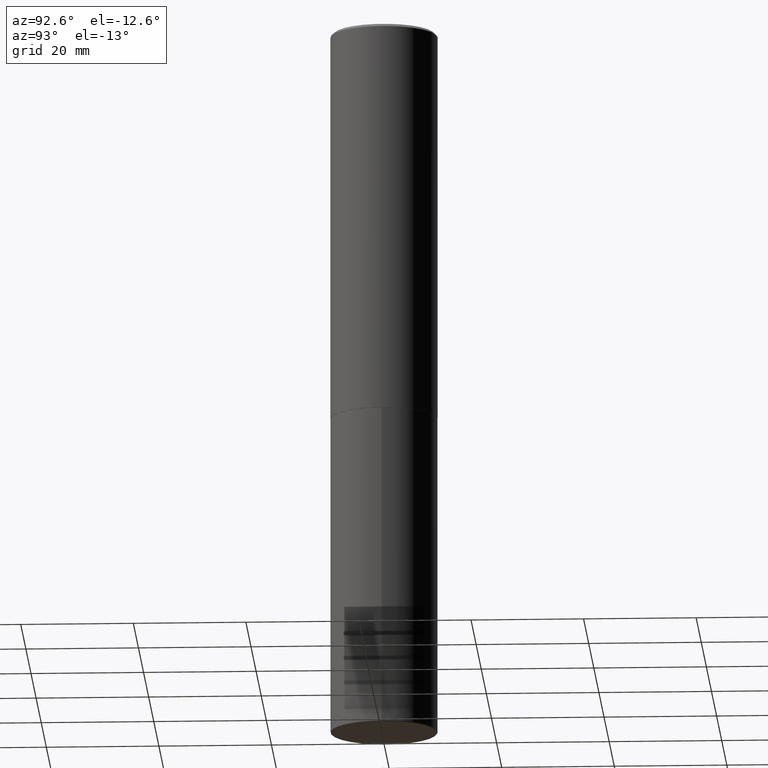
[diagram: clean part render]
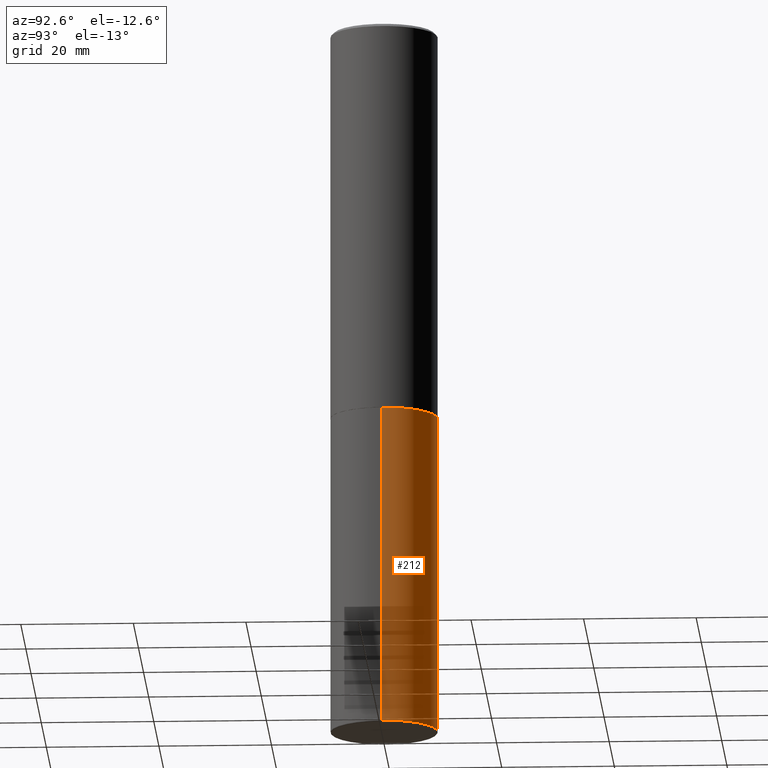
[diagram: same view with one face highlighted and labeled with its STEP entity id]
A machine part, auxiliary view. The second image highlights one B-rep face of the part: STEP entity #212.
In plain terms, the highlighted cylindrical surface (partial cylindrical patch) has radius 9.525 mm, axis along (-0, 0, 1).
Its self-contained STEP definition (entity closure, byte-faithful):
#14 = AXIS2_PLACEMENT_3D ( 'NONE', #387, #48, #221 ) ;
#18 = CYLINDRICAL_SURFACE ( 'NONE', #189, 0.3750000000000000555 ) ;
#34 = CARTESIAN_POINT ( 'NONE',  ( 1.220288934286383144E-28, -1.742249188082729666E-14, -4.990000000000000213 ) ) ;
#39 = ORIENTED_EDGE ( 'NONE', *, *, #170, .F. ) ;
#47 = CARTESIAN_POINT ( 'NONE',  ( -0.3750000000000000555, 2.664535259100376091E-15, -1.844600658845589598E-29 ) ) ;
#48 = DIRECTION ( 'NONE',  ( -2.445468806185136597E-29, 3.491481338843145583E-15, 1.000000000000000000 ) ) ;
#95 = DIRECTION ( 'NONE',  ( -2.445468806185136597E-29, 3.491481338843145583E-15, 1.000000000000000000 ) ) ;
#102 = EDGE_LOOP ( 'NONE', ( #131, #167, #39, #335 ) ) ;
#107 = LINE ( 'NONE', #47, #353 ) ;
#126 = DIRECTION ( 'NONE',  ( 1.000000000000000000, -6.982962677686265922E-15, 4.876176775795935793E-29 ) ) ;
#131 = ORIENTED_EDGE ( 'NONE', *, *, #258, .T. ) ;
#141 = VERTEX_POINT ( 'NONE', #187 ) ;
#160 = DIRECTION ( 'NONE',  ( 1.000000000000000000, -6.982962677686261189E-15, 0.000000000000000000 ) ) ;
#167 = ORIENTED_EDGE ( 'NONE', *, *, #372, .T. ) ;
#170 = EDGE_CURVE ( 'NONE', #201, #171, #396, .T. ) ;
#171 = VERTEX_POINT ( 'NONE', #248 ) ;
#173 = AXIS2_PLACEMENT_3D ( 'NONE', #34, #294, #160 ) ;
#179 = CARTESIAN_POINT ( 'NONE',  ( -0.3750000000000003886, -1.475795662172691781E-14, -4.990000000000000213 ) ) ;
#187 = CARTESIAN_POINT ( 'NONE',  ( 0.3750000000000003886, -2.004110288495964667E-14, -4.990000000000000213 ) ) ;
#189 = AXIS2_PLACEMENT_3D ( 'NONE', #260, #95, #126 ) ;
#201 = VERTEX_POINT ( 'NONE', #250 ) ;
#202 = CARTESIAN_POINT ( 'NONE',  ( 0.3750000000000000555, -2.618611004132350016E-15, 1.828566290923476203E-29 ) ) ;
#212 = ADVANCED_FACE ( 'NONE', ( #273 ), #18, .T. ) ;
#221 = DIRECTION ( 'NONE',  ( 1.000000000000000000, -6.982962677686266711E-15, 0.000000000000000000 ) ) ;
#234 = VECTOR ( 'NONE', #338, 39.37007874015748143 ) ;
#244 = CIRCLE ( 'NONE', #173, 0.3750000000000000555 ) ;
#248 = CARTESIAN_POINT ( 'NONE',  ( -0.3750000000000000555, -1.084749752222259835E-14, -2.750000000000000000 ) ) ;
#250 = CARTESIAN_POINT ( 'NONE',  ( 0.3750000000000000555, -1.222018468595100145E-14, -2.750000000000000000 ) ) ;
#258 = EDGE_CURVE ( 'NONE', #141, #300, #244, .T. ) ;
#260 = CARTESIAN_POINT ( 'NONE',  ( 0.000000000000000000, 0.000000000000000000, 0.000000000000000000 ) ) ;
#273 = FACE_OUTER_BOUND ( 'NONE', #102, .T. ) ;
#294 = DIRECTION ( 'NONE',  ( -2.445468806185136597E-29, 3.491481338843145583E-15, 1.000000000000000000 ) ) ;
#300 = VERTEX_POINT ( 'NONE', #179 ) ;
#312 = LINE ( 'NONE', #202, #234 ) ;
#314 = DIRECTION ( 'NONE',  ( -2.445468806185136877E-29, 3.491481338843145188E-15, 1.000000000000000000 ) ) ;
#335 = ORIENTED_EDGE ( 'NONE', *, *, #395, .F. ) ;
#338 = DIRECTION ( 'NONE',  ( -2.445468806185136877E-29, 3.491481338843145188E-15, 1.000000000000000000 ) ) ;
#353 = VECTOR ( 'NONE', #314, 39.37007874015748143 ) ;
#372 = EDGE_CURVE ( 'NONE', #300, #171, #107, .T. ) ;
#387 = CARTESIAN_POINT ( 'NONE',  ( 6.725039217009124520E-29, -9.601573681818649859E-15, -2.750000000000000000 ) ) ;
#395 = EDGE_CURVE ( 'NONE', #141, #201, #312, .T. ) ;
#396 = CIRCLE ( 'NONE', #14, 0.3750000000000000555 ) ;